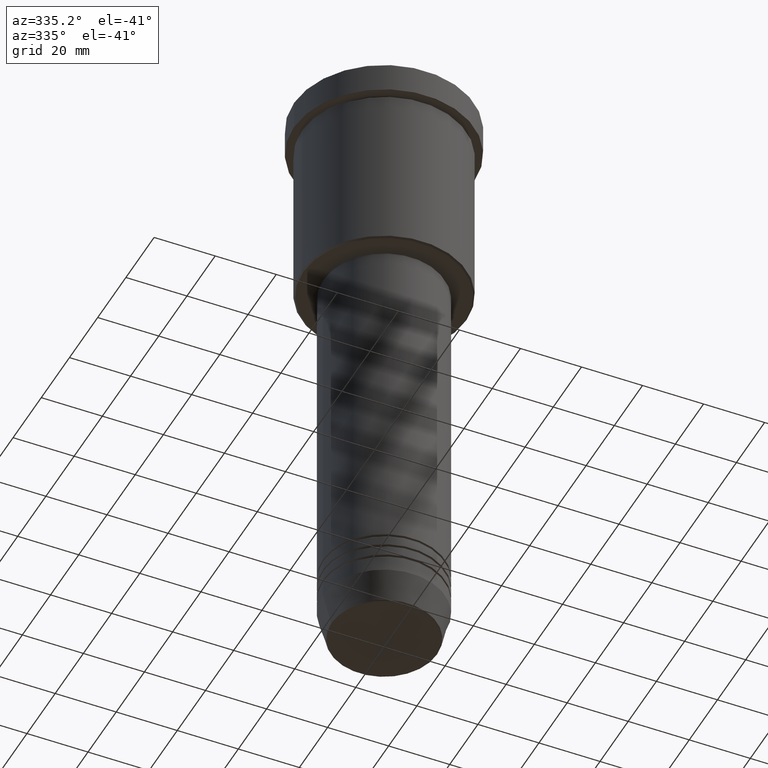
[diagram: clean part render]
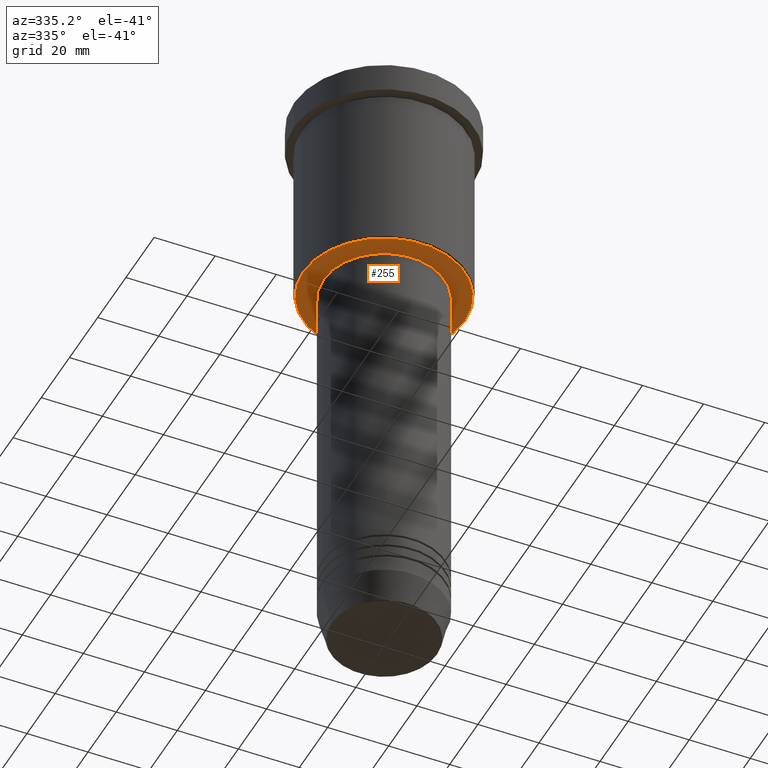
[diagram: same view with one face highlighted and labeled with its STEP entity id]
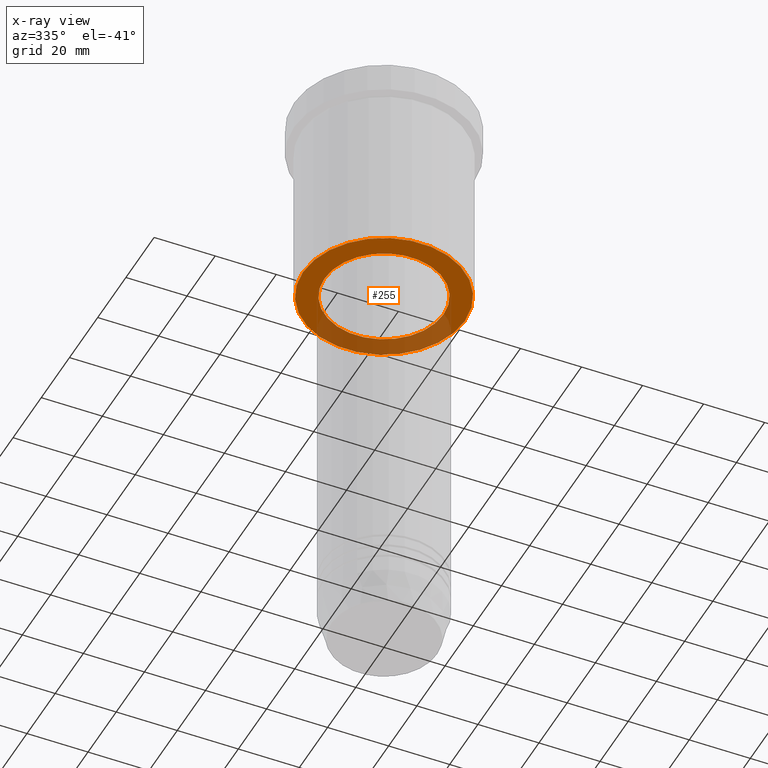
[diagram: x-ray of the same camera — body ghosted, the highlighted face saturated]
A machine part, auxiliary view. The second image highlights one B-rep face of the part: STEP entity #255.
The next image is the same camera in x-ray: the body ghosted, the highlighted face saturated — about 32% of this face is hidden behind the body in this view.
In plain terms, the highlighted planar face has unit normal (0, 0, -1).
Its self-contained STEP definition (entity closure, byte-faithful):
#4 = EDGE_CURVE ( 'NONE', #855, #906, #86, .T. ) ;
#23 = PLANE ( 'NONE',  #112 ) ;
#25 = EDGE_LOOP ( 'NONE', ( #1072, #598 ) ) ;
#81 = DIRECTION ( 'NONE',  ( -1.000000000000000000, 0.000000000000000000, 0.000000000000000000 ) ) ;
#86 = CIRCLE ( 'NONE', #427, 26.49999999999999645 ) ;
#112 = AXIS2_PLACEMENT_3D ( 'NONE', #929, #154, #240 ) ;
#154 = DIRECTION ( 'NONE',  ( 0.000000000000000000, 0.000000000000000000, -1.000000000000000000 ) ) ;
#155 = CARTESIAN_POINT ( 'NONE',  ( 0.000000000000000000, 0.000000000000000000, -66.00000000000000000 ) ) ;
#173 = VERTEX_POINT ( 'NONE', #748 ) ;
#188 = DIRECTION ( 'NONE',  ( 1.000000000000000000, 0.000000000000000000, 0.000000000000000000 ) ) ;
#210 = CIRCLE ( 'NONE', #960, 26.49999999999999645 ) ;
#240 = DIRECTION ( 'NONE',  ( -1.000000000000000000, 0.000000000000000000, -0.000000000000000000 ) ) ;
#244 = CIRCLE ( 'NONE', #1000, 19.50000000000000000 ) ;
#255 = ADVANCED_FACE ( 'NONE', ( #408, #584 ), #23, .T. ) ;
#323 = CIRCLE ( 'NONE', #812, 19.50000000000000000 ) ;
#330 = CARTESIAN_POINT ( 'NONE',  ( -19.50000000000000000, 2.388061258337338939E-15, -66.00000000000000000 ) ) ;
#356 = CARTESIAN_POINT ( 'NONE',  ( 0.000000000000000000, 0.000000000000000000, -66.00000000000000000 ) ) ;
#385 = CARTESIAN_POINT ( 'NONE',  ( 0.000000000000000000, 0.000000000000000000, -66.00000000000000000 ) ) ;
#408 = FACE_OUTER_BOUND ( 'NONE', #1171, .T. ) ;
#422 = EDGE_CURVE ( 'NONE', #906, #855, #210, .T. ) ;
#427 = AXIS2_PLACEMENT_3D ( 'NONE', #155, #874, #867 ) ;
#468 = EDGE_CURVE ( 'NONE', #829, #173, #323, .T. ) ;
#584 = FACE_BOUND ( 'NONE', #25, .T. ) ;
#593 = EDGE_CURVE ( 'NONE', #173, #829, #244, .T. ) ;
#598 = ORIENTED_EDGE ( 'NONE', *, *, #468, .T. ) ;
#618 = ORIENTED_EDGE ( 'NONE', *, *, #422, .T. ) ;
#703 = CARTESIAN_POINT ( 'NONE',  ( 26.49999999999999645, 0.000000000000000000, -66.00000000000000000 ) ) ;
#710 = DIRECTION ( 'NONE',  ( -0.000000000000000000, -0.000000000000000000, 1.000000000000000000 ) ) ;
#723 = CARTESIAN_POINT ( 'NONE',  ( -26.49999999999999645, 3.275930187719169552E-15, -66.00000000000000000 ) ) ;
#748 = CARTESIAN_POINT ( 'NONE',  ( 19.50000000000000000, 0.000000000000000000, -66.00000000000000000 ) ) ;
#804 = DIRECTION ( 'NONE',  ( 0.000000000000000000, 0.000000000000000000, -1.000000000000000000 ) ) ;
#812 = AXIS2_PLACEMENT_3D ( 'NONE', #356, #710, #188 ) ;
#823 = CARTESIAN_POINT ( 'NONE',  ( 0.000000000000000000, 0.000000000000000000, -66.00000000000000000 ) ) ;
#829 = VERTEX_POINT ( 'NONE', #330 ) ;
#855 = VERTEX_POINT ( 'NONE', #703 ) ;
#867 = DIRECTION ( 'NONE',  ( -1.000000000000000000, 0.000000000000000000, 0.000000000000000000 ) ) ;
#874 = DIRECTION ( 'NONE',  ( 0.000000000000000000, 0.000000000000000000, -1.000000000000000000 ) ) ;
#906 = VERTEX_POINT ( 'NONE', #723 ) ;
#929 = CARTESIAN_POINT ( 'NONE',  ( 0.000000000000000000, 27.00000000000000355, -66.00000000000000000 ) ) ;
#935 = DIRECTION ( 'NONE',  ( -0.000000000000000000, -0.000000000000000000, 1.000000000000000000 ) ) ;
#960 = AXIS2_PLACEMENT_3D ( 'NONE', #823, #804, #81 ) ;
#1000 = AXIS2_PLACEMENT_3D ( 'NONE', #385, #935, #1026 ) ;
#1026 = DIRECTION ( 'NONE',  ( 1.000000000000000000, 0.000000000000000000, 0.000000000000000000 ) ) ;
#1072 = ORIENTED_EDGE ( 'NONE', *, *, #593, .T. ) ;
#1075 = ORIENTED_EDGE ( 'NONE', *, *, #4, .T. ) ;
#1171 = EDGE_LOOP ( 'NONE', ( #1075, #618 ) ) ;